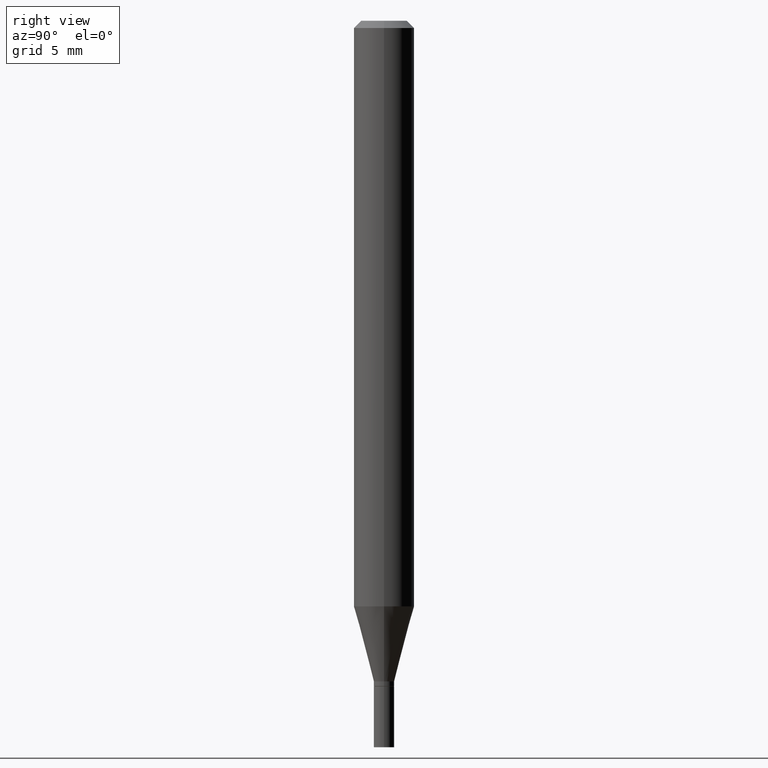
[diagram: clean part render]
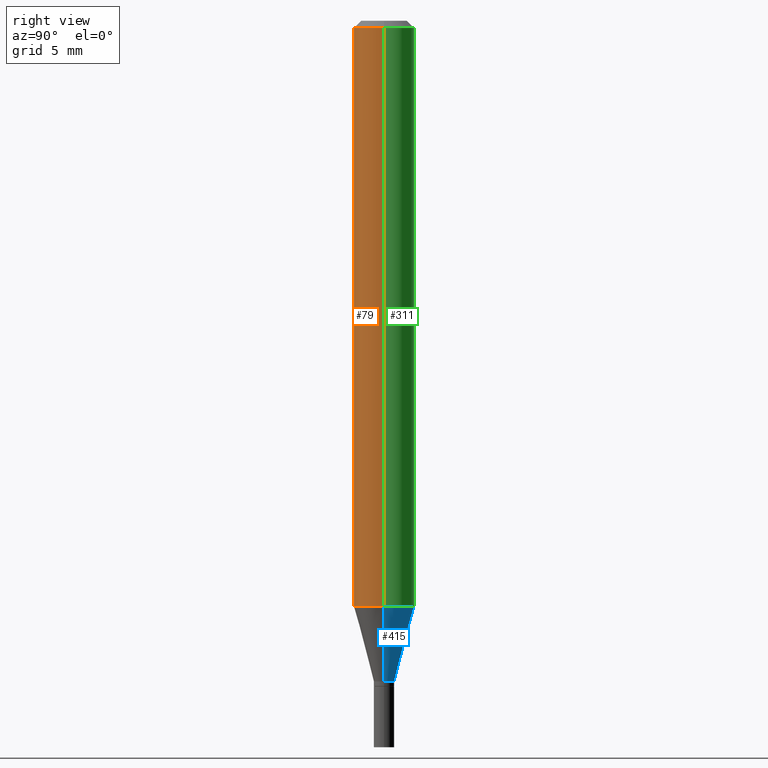
[diagram: same view with three faces highlighted in distinct colors, each labeled with its STEP entity id]
A machine part, right view with three faces highlighted in distinct colors.
Their STEP definitions:

[orange] entity #79 — the highlighted cylindrical surface (edge-blend (fillet) strip) has radius 1.5875 mm, axis along (-0, 0, 1).
#5 = VERTEX_POINT ( 'NONE', #285 ) ;
#7 = DIRECTION ( 'NONE',  ( -2.445468806185136597E-29, 3.491481338843145583E-15, 1.000000000000000000 ) ) ;
#25 = VERTEX_POINT ( 'NONE', #398 ) ;
#39 = AXIS2_PLACEMENT_3D ( 'NONE', #381, #312, #171 ) ;
#42 = VERTEX_POINT ( 'NONE', #359 ) ;
#53 = FACE_OUTER_BOUND ( 'NONE', #176, .T. ) ;
#73 = CIRCLE ( 'NONE', #274, 0.06250000000000000000 ) ;
#79 = ADVANCED_FACE ( 'NONE', ( #53 ), #327, .T. ) ;
#86 = LINE ( 'NONE', #369, #266 ) ;
#91 = CARTESIAN_POINT ( 'NONE',  ( 0.000000000000000000, 0.000000000000000000, 0.000000000000000000 ) ) ;
#93 = DIRECTION ( 'NONE',  ( 1.000000000000000000, -6.982962677686266711E-15, 4.876176775795935793E-29 ) ) ;
#97 = CARTESIAN_POINT ( 'NONE',  ( 0.06250000000000000000, -4.364351673553916694E-16, 3.047610484872459871E-30 ) ) ;
#105 = VERTEX_POINT ( 'NONE', #195 ) ;
#106 = ORIENTED_EDGE ( 'NONE', *, *, #361, .T. ) ;
#123 = DIRECTION ( 'NONE',  ( -2.445468806185136597E-29, 3.491481338843145583E-15, 1.000000000000000000 ) ) ;
#124 = DIRECTION ( 'NONE',  ( -2.445468806185136877E-29, 3.491481338843145188E-15, 1.000000000000000000 ) ) ;
#166 = CIRCLE ( 'NONE', #39, 0.06250000000000000000 ) ;
#171 = DIRECTION ( 'NONE',  ( 1.000000000000000000, -6.982962677686270655E-15, 0.000000000000000000 ) ) ;
#176 = EDGE_LOOP ( 'NONE', ( #432, #106, #245, #210 ) ) ;
#178 = EDGE_CURVE ( 'NONE', #105, #5, #86, .T. ) ;
#179 = VECTOR ( 'NONE', #413, 39.37007874015748143 ) ;
#195 = CARTESIAN_POINT ( 'NONE',  ( -0.06250000000000000000, -3.777530327696978579E-15, -1.209119891485891607 ) ) ;
#203 = EDGE_CURVE ( 'NONE', #5, #42, #73, .T. ) ;
#210 = ORIENTED_EDGE ( 'NONE', *, *, #203, .F. ) ;
#212 = LINE ( 'NONE', #97, #179 ) ;
#227 = EDGE_CURVE ( 'NONE', #25, #42, #212, .T. ) ;
#245 = ORIENTED_EDGE ( 'NONE', *, *, #227, .T. ) ;
#266 = VECTOR ( 'NONE', #124, 39.37007874015748143 ) ;
#274 = AXIS2_PLACEMENT_3D ( 'NONE', #442, #123, #410 ) ;
#285 = CARTESIAN_POINT ( 'NONE',  ( -0.06250000000000000000, -1.692906668964781127E-15, -0.01499999999999999944 ) ) ;
#312 = DIRECTION ( 'NONE',  ( -2.445468806185136597E-29, 3.491481338843145583E-15, 1.000000000000000000 ) ) ;
#327 = CYLINDRICAL_SURFACE ( 'NONE', #338, 0.06250000000000000000 ) ;
#338 = AXIS2_PLACEMENT_3D ( 'NONE', #91, #7, #93 ) ;
#359 = CARTESIAN_POINT ( 'NONE',  ( 0.06250000000000000000, -4.888073874380388472E-16, -0.01499999999999999944 ) ) ;
#361 = EDGE_CURVE ( 'NONE', #105, #25, #166, .T. ) ;
#369 = CARTESIAN_POINT ( 'NONE',  ( -0.06250000000000000000, 4.440892098500626162E-16, -3.074334431409316114E-30 ) ) ;
#381 = CARTESIAN_POINT ( 'NONE',  ( 2.956864977566705326E-29, -4.221619537547040407E-15, -1.209119891485891607 ) ) ;
#398 = CARTESIAN_POINT ( 'NONE',  ( 0.06250000000000000000, -4.658054704902432076E-15, -1.209119891485891607 ) ) ;
#410 = DIRECTION ( 'NONE',  ( 1.000000000000000000, -6.982962677686266711E-15, 0.000000000000000000 ) ) ;
#413 = DIRECTION ( 'NONE',  ( -2.445468806185136877E-29, 3.491481338843145188E-15, 1.000000000000000000 ) ) ;
#432 = ORIENTED_EDGE ( 'NONE', *, *, #178, .F. ) ;
#442 = CARTESIAN_POINT ( 'NONE',  ( 3.668203209277705088E-31, -5.237222008264718399E-17, -0.01499999999999999944 ) ) ;

[blue] entity #415 — the highlighted conical surface has half-angle 15 deg.
#3 = ORIENTED_EDGE ( 'NONE', *, *, #261, .F. ) ;
#8 = CARTESIAN_POINT ( 'NONE',  ( 3.335619451636526233E-29, -4.762380546182051062E-15, -1.363999999999999879 ) ) ;
#25 = VERTEX_POINT ( 'NONE', #398 ) ;
#32 = AXIS2_PLACEMENT_3D ( 'NONE', #152, #397, #441 ) ;
#37 = EDGE_LOOP ( 'NONE', ( #271, #137, #3, #80 ) ) ;
#40 = VECTOR ( 'NONE', #265, 39.37007874015747433 ) ;
#49 = EDGE_CURVE ( 'NONE', #306, #105, #214, .T. ) ;
#75 = CARTESIAN_POINT ( 'NONE',  ( 0.02099999999999992151, -4.909022762413462095E-15, -1.363999999999999879 ) ) ;
#80 = ORIENTED_EDGE ( 'NONE', *, *, #193, .F. ) ;
#105 = VERTEX_POINT ( 'NONE', #195 ) ;
#137 = ORIENTED_EDGE ( 'NONE', *, *, #49, .T. ) ;
#152 = CARTESIAN_POINT ( 'NONE',  ( 3.335619451636526233E-29, -4.762380546182051062E-15, -1.363999999999999879 ) ) ;
#165 = AXIS2_PLACEMENT_3D ( 'NONE', #270, #204, #240 ) ;
#169 = CARTESIAN_POINT ( 'NONE',  ( -0.02099999999999992151, -4.195348449684704235E-15, -1.363999999999999879 ) ) ;
#189 = FACE_OUTER_BOUND ( 'NONE', #37, .T. ) ;
#190 = LINE ( 'NONE', #330, #363 ) ;
#193 = EDGE_CURVE ( 'NONE', #423, #25, #190, .T. ) ;
#195 = CARTESIAN_POINT ( 'NONE',  ( -0.06250000000000000000, -3.777530327696978579E-15, -1.209119891485891607 ) ) ;
#204 = DIRECTION ( 'NONE',  ( -2.445468806185136597E-29, 3.491481338843145583E-15, 1.000000000000000000 ) ) ;
#214 = LINE ( 'NONE', #412, #40 ) ;
#240 = DIRECTION ( 'NONE',  ( 1.000000000000000000, -6.982962677686270655E-15, 0.000000000000000000 ) ) ;
#252 = DIRECTION ( 'NONE',  ( 1.000000000000000000, -6.982962677686266711E-15, 0.000000000000000000 ) ) ;
#261 = EDGE_CURVE ( 'NONE', #25, #105, #298, .T. ) ;
#265 = DIRECTION ( 'NONE',  ( -0.2588190451025213501, 5.211531920934551042E-15, 0.9659258262890682012 ) ) ;
#270 = CARTESIAN_POINT ( 'NONE',  ( 2.956864977566705326E-29, -4.221619537547040407E-15, -1.209119891485891607 ) ) ;
#271 = ORIENTED_EDGE ( 'NONE', *, *, #435, .T. ) ;
#289 = CONICAL_SURFACE ( 'NONE', #392, 0.02099999999999992151, 0.2617993877991500740 ) ;
#298 = CIRCLE ( 'NONE', #165, 0.06250000000000000000 ) ;
#306 = VERTEX_POINT ( 'NONE', #169 ) ;
#330 = CARTESIAN_POINT ( 'NONE',  ( 0.02099999999999992151, -4.909022762413462095E-15, -1.363999999999999879 ) ) ;
#363 = VECTOR ( 'NONE', #444, 39.37007874015747433 ) ;
#367 = CIRCLE ( 'NONE', #32, 0.02099999999999992151 ) ;
#370 = DIRECTION ( 'NONE',  ( -2.445468806185136597E-29, 3.491481338843145583E-15, 1.000000000000000000 ) ) ;
#392 = AXIS2_PLACEMENT_3D ( 'NONE', #8, #370, #252 ) ;
#397 = DIRECTION ( 'NONE',  ( -2.445468806185136597E-29, 3.491481338843145583E-15, 1.000000000000000000 ) ) ;
#398 = CARTESIAN_POINT ( 'NONE',  ( 0.06250000000000000000, -4.658054704902432076E-15, -1.209119891485891607 ) ) ;
#412 = CARTESIAN_POINT ( 'NONE',  ( -0.02099999999999992151, -4.613166571672430680E-15, -1.363999999999999879 ) ) ;
#415 = ADVANCED_FACE ( 'NONE', ( #189 ), #289, .T. ) ;
#423 = VERTEX_POINT ( 'NONE', #75 ) ;
#435 = EDGE_CURVE ( 'NONE', #423, #306, #367, .T. ) ;
#441 = DIRECTION ( 'NONE',  ( 1.000000000000000000, -6.982962677686266711E-15, 0.000000000000000000 ) ) ;
#444 = DIRECTION ( 'NONE',  ( 0.2588190451025213501, 1.565188264969621968E-15, 0.9659258262890682012 ) ) ;

[green] entity #311 — the highlighted cylindrical surface (edge-blend (fillet) strip) has radius 1.5875 mm, axis along (-0, 0, 1).
#5 = VERTEX_POINT ( 'NONE', #285 ) ;
#25 = VERTEX_POINT ( 'NONE', #398 ) ;
#42 = VERTEX_POINT ( 'NONE', #359 ) ;
#51 = DIRECTION ( 'NONE',  ( -2.445468806185136597E-29, 3.491481338843145583E-15, 1.000000000000000000 ) ) ;
#72 = DIRECTION ( 'NONE',  ( -2.445468806185136597E-29, 3.491481338843145583E-15, 1.000000000000000000 ) ) ;
#86 = LINE ( 'NONE', #369, #266 ) ;
#97 = CARTESIAN_POINT ( 'NONE',  ( 0.06250000000000000000, -4.364351673553916694E-16, 3.047610484872459871E-30 ) ) ;
#105 = VERTEX_POINT ( 'NONE', #195 ) ;
#112 = EDGE_CURVE ( 'NONE', #42, #5, #138, .T. ) ;
#124 = DIRECTION ( 'NONE',  ( -2.445468806185136877E-29, 3.491481338843145188E-15, 1.000000000000000000 ) ) ;
#131 = DIRECTION ( 'NONE',  ( 1.000000000000000000, -6.982962677686266711E-15, 4.876176775795935793E-29 ) ) ;
#138 = CIRCLE ( 'NONE', #197, 0.06250000000000000000 ) ;
#141 = AXIS2_PLACEMENT_3D ( 'NONE', #305, #72, #131 ) ;
#143 = ORIENTED_EDGE ( 'NONE', *, *, #261, .T. ) ;
#165 = AXIS2_PLACEMENT_3D ( 'NONE', #270, #204, #240 ) ;
#178 = EDGE_CURVE ( 'NONE', #105, #5, #86, .T. ) ;
#179 = VECTOR ( 'NONE', #413, 39.37007874015748143 ) ;
#195 = CARTESIAN_POINT ( 'NONE',  ( -0.06250000000000000000, -3.777530327696978579E-15, -1.209119891485891607 ) ) ;
#197 = AXIS2_PLACEMENT_3D ( 'NONE', #340, #51, #337 ) ;
#204 = DIRECTION ( 'NONE',  ( -2.445468806185136597E-29, 3.491481338843145583E-15, 1.000000000000000000 ) ) ;
#212 = LINE ( 'NONE', #97, #179 ) ;
#227 = EDGE_CURVE ( 'NONE', #25, #42, #212, .T. ) ;
#240 = DIRECTION ( 'NONE',  ( 1.000000000000000000, -6.982962677686270655E-15, 0.000000000000000000 ) ) ;
#261 = EDGE_CURVE ( 'NONE', #25, #105, #298, .T. ) ;
#266 = VECTOR ( 'NONE', #124, 39.37007874015748143 ) ;
#270 = CARTESIAN_POINT ( 'NONE',  ( 2.956864977566705326E-29, -4.221619537547040407E-15, -1.209119891485891607 ) ) ;
#285 = CARTESIAN_POINT ( 'NONE',  ( -0.06250000000000000000, -1.692906668964781127E-15, -0.01499999999999999944 ) ) ;
#298 = CIRCLE ( 'NONE', #165, 0.06250000000000000000 ) ;
#305 = CARTESIAN_POINT ( 'NONE',  ( 0.000000000000000000, 0.000000000000000000, 0.000000000000000000 ) ) ;
#310 = FACE_OUTER_BOUND ( 'NONE', #437, .T. ) ;
#311 = ADVANCED_FACE ( 'NONE', ( #310 ), #447, .T. ) ;
#324 = ORIENTED_EDGE ( 'NONE', *, *, #112, .F. ) ;
#337 = DIRECTION ( 'NONE',  ( 1.000000000000000000, -6.982962677686266711E-15, 0.000000000000000000 ) ) ;
#340 = CARTESIAN_POINT ( 'NONE',  ( 3.668203209277705088E-31, -5.237222008264718399E-17, -0.01499999999999999944 ) ) ;
#359 = CARTESIAN_POINT ( 'NONE',  ( 0.06250000000000000000, -4.888073874380388472E-16, -0.01499999999999999944 ) ) ;
#369 = CARTESIAN_POINT ( 'NONE',  ( -0.06250000000000000000, 4.440892098500626162E-16, -3.074334431409316114E-30 ) ) ;
#382 = ORIENTED_EDGE ( 'NONE', *, *, #227, .F. ) ;
#398 = CARTESIAN_POINT ( 'NONE',  ( 0.06250000000000000000, -4.658054704902432076E-15, -1.209119891485891607 ) ) ;
#401 = ORIENTED_EDGE ( 'NONE', *, *, #178, .T. ) ;
#413 = DIRECTION ( 'NONE',  ( -2.445468806185136877E-29, 3.491481338843145188E-15, 1.000000000000000000 ) ) ;
#437 = EDGE_LOOP ( 'NONE', ( #143, #401, #324, #382 ) ) ;
#447 = CYLINDRICAL_SURFACE ( 'NONE', #141, 0.06250000000000000000 ) ;